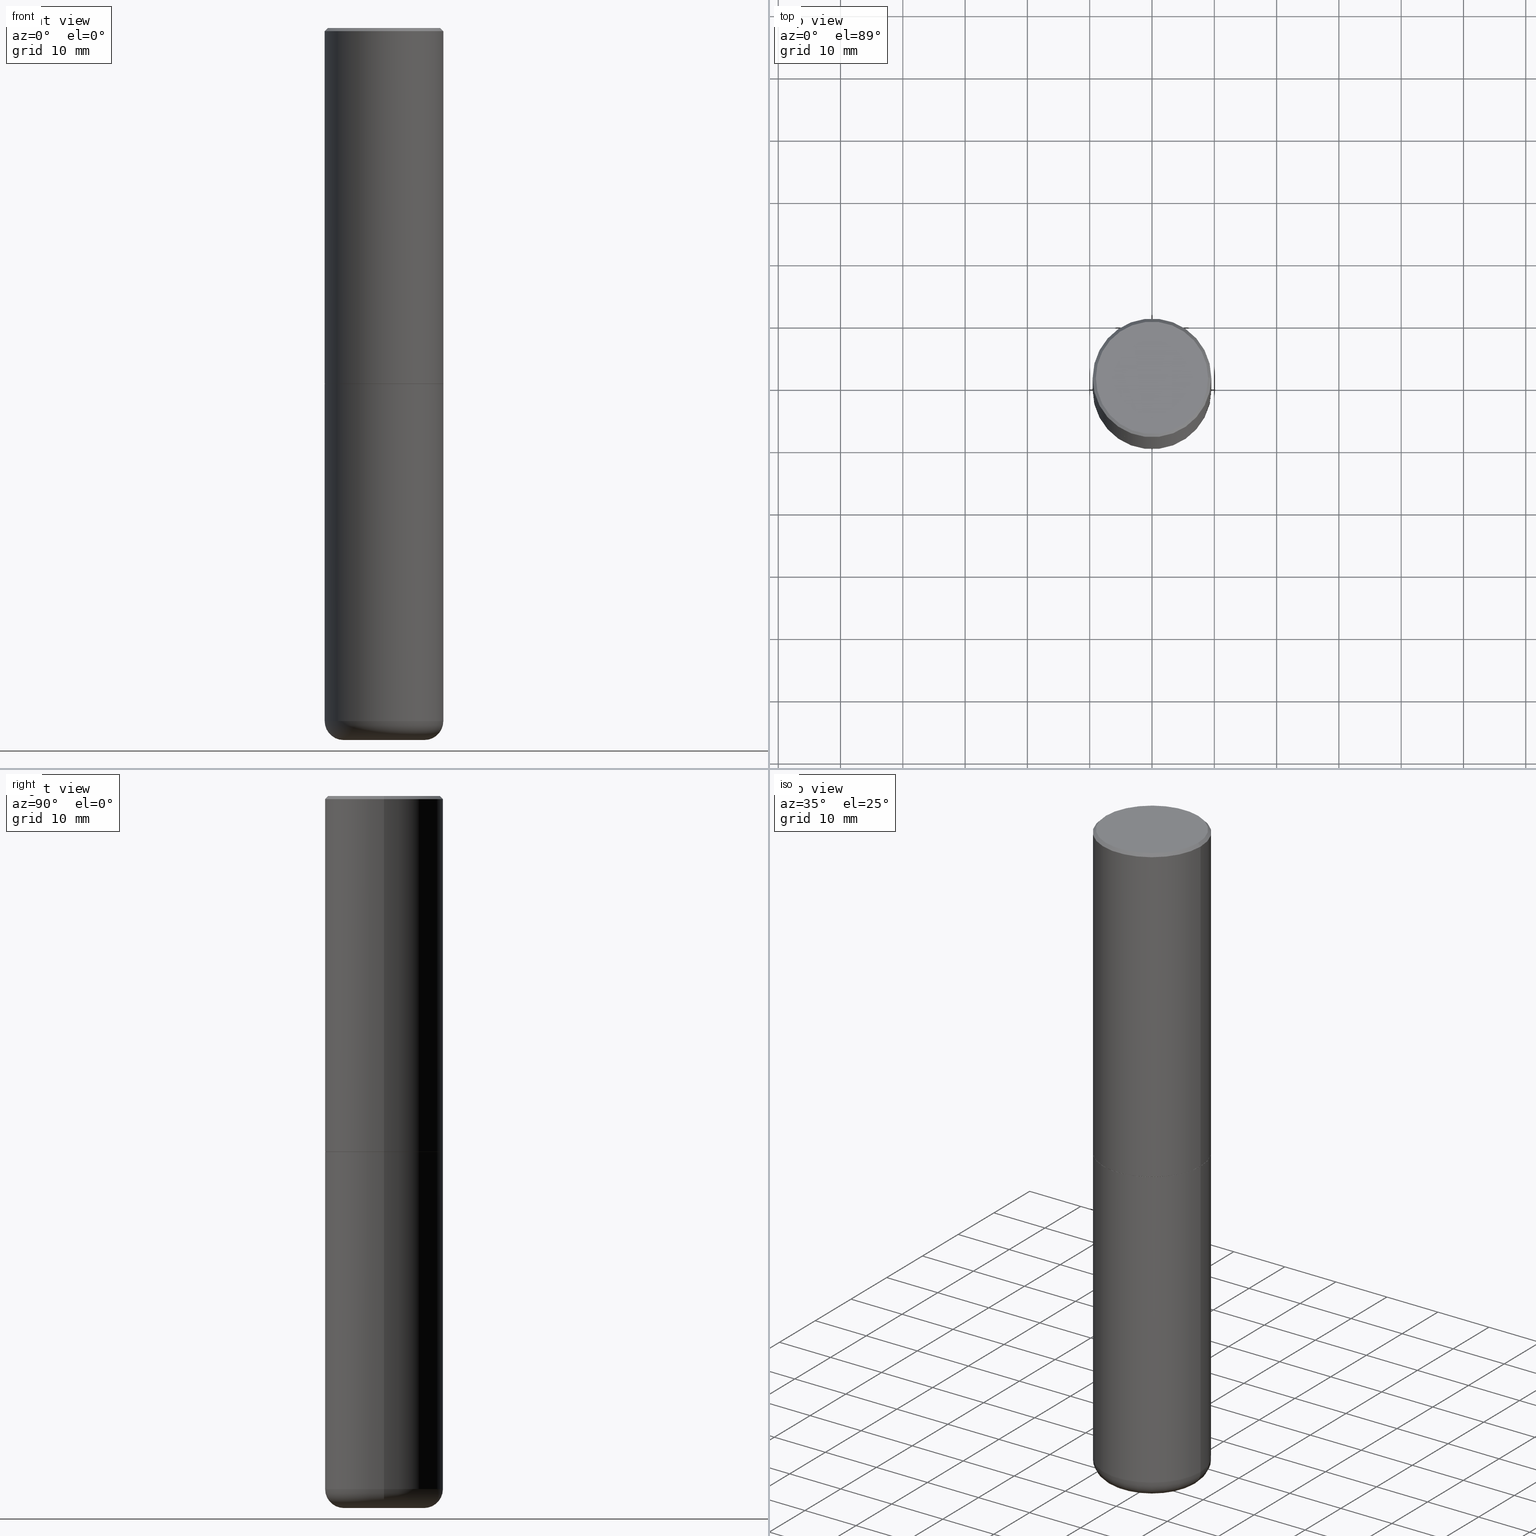
[diagram: canonical four-view strip — front | top / right | iso, engineering-drawing reading convention]
A machine part, canonical four-view strip (front | top / right | iso — engineering-drawing reading convention). The complete STEP part file that produces these views, byte-faithful:
ISO-10303-21;
HEADER;
FILE_DESCRIPTION (( 'STEP AP203' ),
    '1' );
FILE_NAME ('77275.STEP',
    '2024-03-06T16:48:19',
    ( '' ),
    ( '' ),
    'SwSTEP 2.0',
    'SolidWorks 2023',
    '' );
FILE_SCHEMA (( 'CONFIG_CONTROL_DESIGN' ));
ENDSEC;

DATA;
#1 = CIRCLE ( 'NONE', #307, 0.3750000000000001110 ) ;
#2 = CC_DESIGN_DATE_AND_TIME_ASSIGNMENT ( #328, #199, ( #334 ) ) ;
#3 = PRODUCT_DEFINITION_FORMATION_WITH_SPECIFIED_SOURCE ( 'ANY', '', #338, .NOT_KNOWN. ) ;
#4 = ORIENTED_EDGE ( 'NONE', *, *, #373, .F. ) ;
#5 = DIMENSIONAL_EXPONENTS ( 1.000000000000000000, 0.000000000000000000, 0.000000000000000000, 0.000000000000000000, 0.000000000000000000, 0.000000000000000000, 0.000000000000000000 ) ;
#6 = ADVANCED_FACE ( 'NONE', ( #128 ), #8, .T. ) ;
#7 = DIRECTION ( 'NONE',  ( -2.445468806185136597E-29, 3.491481338843145583E-15, 1.000000000000000000 ) ) ;
#8 = CYLINDRICAL_SURFACE ( 'NONE', #367, 0.3750000000000002220 ) ;
#9 = ORIENTED_EDGE ( 'NONE', *, *, #165, .T. ) ;
#10 = DIRECTION ( 'NONE',  ( -2.445468806185136597E-29, 3.491481338843145583E-15, 1.000000000000000000 ) ) ;
#11 = DIRECTION ( 'NONE',  ( -2.438088387897960049E-29, 3.491481338843145188E-15, 1.000000000000000000 ) ) ;
#12 = DIRECTION ( 'NONE',  ( 1.000000000000000000, -6.982962677686265922E-15, 4.876231632511988183E-29 ) ) ;
#13 = CIRCLE ( 'NONE', #376, 0.1200000000000002176 ) ;
#14 = EDGE_CURVE ( 'NONE', #322, #175, #149, .T. ) ;
#15 = CARTESIAN_POINT ( 'NONE',  ( 0.000000000000000000, 0.000000000000000000, 0.000000000000000000 ) ) ;
#16 = VECTOR ( 'NONE', #268, 39.37007874015748143 ) ;
#17 = DIRECTION ( 'NONE',  ( -1.000000000000000000, 6.982962677686265922E-15, -4.876176775795935793E-29 ) ) ;
#18 = AXIS2_PLACEMENT_3D ( 'NONE', #206, #54, #89 ) ;
#19 = APPROVAL_DATE_TIME ( #234, #140 ) ;
#20 = PLANE ( 'NONE',  #306 ) ;
#21 = LINE ( 'NONE', #374, #360 ) ;
#22 = VECTOR ( 'NONE', #162, 39.37007874015748143 ) ;
#23 = AXIS2_PLACEMENT_3D ( 'NONE', #355, #10, #38 ) ;
#24 = CARTESIAN_POINT ( 'NONE',  ( 0.3750000000000000555, -1.047444401652942689E-14, -2.250000000000000000 ) ) ;
#25 = DIRECTION ( 'NONE',  ( 1.000000000000000000, -6.982962677686261189E-15, 0.000000000000000000 ) ) ;
#26 = ADVANCED_FACE ( 'NONE', ( #380 ), #96, .T. ) ;
#27 = CARTESIAN_POINT ( 'NONE',  ( 0.2550000000000000044, -1.707334374694297701E-14, -4.379999999999999893 ) ) ;
#28 = DIRECTION ( 'NONE',  ( 1.000000000000000000, -6.982962677686266711E-15, 4.876176775795935793E-29 ) ) ;
#29 = VECTOR ( 'NONE', #225, 39.37007874015748143 ) ;
#30 = DIRECTION ( 'NONE',  ( -2.445468806185136597E-29, 3.491481338843145583E-15, 1.000000000000000000 ) ) ;
#31 = CARTESIAN_POINT ( 'NONE',  ( -0.3750000000000001110, 2.548781377355487113E-15, -0.02000000000000008715 ) ) ;
#32 = DIRECTION ( 'NONE',  ( -2.445468806185136597E-29, 3.491481338843145583E-15, 1.000000000000000000 ) ) ;
#33 = DIRECTION ( 'NONE',  ( 1.000000000000000000, -6.982962677686265922E-15, 4.876176775795935793E-29 ) ) ;
#34 = CARTESIAN_POINT ( 'NONE',  ( 5.499859345110371740E-29, -7.852341531058233864E-15, -2.249000000000000110 ) ) ;
#35 = ORIENTED_EDGE ( 'NONE', *, *, #70, .F. ) ;
#36 = AXIS2_PLACEMENT_3D ( 'NONE', #127, #327, #392 ) ;
#37 = LOCAL_TIME ( 11, 48, 19.00000000000000000, #240 ) ;
#38 = DIRECTION ( 'NONE',  ( 1.000000000000000000, -6.982962677686264344E-15, 0.000000000000000000 ) ) ;
#39 = CC_DESIGN_APPROVAL ( #274, ( #341 ) ) ;
#40 = ORIENTED_EDGE ( 'NONE', *, *, #277, .F. ) ;
#41 = ORIENTED_EDGE ( 'NONE', *, *, #309, .T. ) ;
#42 = DIRECTION ( 'NONE',  ( 1.000000000000000000, -6.982962677686269077E-15, 4.883557194083113462E-29 ) ) ;
#43 = CARTESIAN_POINT ( 'NONE',  ( 0.000000000000000000, 0.000000000000000000, 0.000000000000000000 ) ) ;
#44 = EDGE_CURVE ( 'NONE', #132, #322, #318, .T. ) ;
#45 =( NAMED_UNIT ( * ) SI_UNIT ( $, .STERADIAN. ) SOLID_ANGLE_UNIT ( ) );
#46 = CC_DESIGN_PERSON_AND_ORGANIZATION_ASSIGNMENT ( #84, #143, ( #3 ) ) ;
#47 = DATE_TIME_ROLE ( 'classification_date' ) ;
#48 = AXIS2_PLACEMENT_3D ( 'NONE', #193, #163, #12 ) ;
#49 = ADVANCED_FACE ( 'NONE', ( #386 ), #394, .T. ) ;
#50 = CALENDAR_DATE ( 2024, 6, 3 ) ;
#51 = CC_DESIGN_PERSON_AND_ORGANIZATION_ASSIGNMENT ( #365, #403, ( #3 ) ) ;
#52 = CARTESIAN_POINT ( 'NONE',  ( 5.502304813916558464E-29, -7.855833012397078448E-15, -2.250000000000000444 ) ) ;
#53 = COORDINATED_UNIVERSAL_TIME_OFFSET ( 5, 0, .BEHIND. ) ;
#54 = DIRECTION ( 'NONE',  ( -2.445468806185136597E-29, 3.491481338843145583E-15, 1.000000000000000000 ) ) ;
#55 = CIRCLE ( 'NONE', #66, 0.3549999999999999822 ) ;
#56 = ORIENTED_EDGE ( 'NONE', *, *, #70, .T. ) ;
#57 = DIRECTION ( 'NONE',  ( -2.445468806185136597E-29, 3.491481338843145583E-15, 1.000000000000000000 ) ) ;
#58 = FACE_OUTER_BOUND ( 'NONE', #295, .T. ) ;
#59 = AXIS2_PLACEMENT_3D ( 'NONE', #358, #32, #294 ) ;
#60 = CARTESIAN_POINT ( 'NONE',  ( 4.271765187526177171E-29, -2.535348247302097113E-14, -4.500000000000000888 ) ) ;
#61 = ADVANCED_FACE ( 'NONE', ( #136 ), #174, .F. ) ;
#62 = CARTESIAN_POINT ( 'NONE',  ( -0.2550000000000000044, -1.326396752681925022E-14, -4.500000000000000888 ) ) ;
#63 = VERTEX_POINT ( 'NONE', #88 ) ;
#64 = DIRECTION ( 'NONE',  ( 1.000000000000000000, -6.982962677686265133E-15, 0.000000000000000000 ) ) ;
#65 = ORIENTED_EDGE ( 'NONE', *, *, #266, .T. ) ;
#66 = AXIS2_PLACEMENT_3D ( 'NONE', #90, #407, #116 ) ;
#67 = DIRECTION ( 'NONE',  ( -1.000000000000000000, 6.982962677686265922E-15, 0.000000000000000000 ) ) ;
#68 = ORIENTED_EDGE ( 'NONE', *, *, #297, .T. ) ;
#69 = LINE ( 'NONE', #258, #270 ) ;
#70 = EDGE_CURVE ( 'NONE', #182, #222, #79, .T. ) ;
#71 = ORIENTED_EDGE ( 'NONE', *, *, #44, .F. ) ;
#72 = FACE_OUTER_BOUND ( 'NONE', #287, .T. ) ;
#73 = ORIENTED_EDGE ( 'NONE', *, *, #305, .F. ) ;
#74 = TOROIDAL_SURFACE ( 'NONE', #100, 0.2550000000000000044, 0.1200000000000001898 ) ;
#75 = DIRECTION ( 'NONE',  ( 1.000000000000000000, -6.982962677686267499E-15, 0.000000000000000000 ) ) ;
#76 = DIRECTION ( 'NONE',  ( 1.000000000000000000, -6.982962677686265922E-15, 4.876176775795935793E-29 ) ) ;
#77 = DIRECTION ( 'NONE',  ( 1.000000000000000000, -6.982962677686265133E-15, 0.000000000000000000 ) ) ;
#78 = EDGE_CURVE ( 'NONE', #353, #175, #366, .T. ) ;
#79 = CIRCLE ( 'NONE', #310, 0.3739999999999999991 ) ;
#80 = PERSON_AND_ORGANIZATION ( #157, #81 ) ;
#81 = ORGANIZATION ( 'UNSPECIFIED', 'UNSPECIFIED', '' ) ;
#82 = CALENDAR_DATE ( 2024, 6, 3 ) ;
#83 = PERSON_AND_ORGANIZATION_ROLE ( 'design_owner' ) ;
#84 = PERSON_AND_ORGANIZATION ( #157, #81 ) ;
#85 = DIRECTION ( 'NONE',  ( 1.000000000000000000, -6.982962677686264344E-15, 0.000000000000000000 ) ) ;
#86 = AXIS2_PLACEMENT_3D ( 'NONE', #286, #131, #77 ) ;
#87 = EDGE_CURVE ( 'NONE', #63, #251, #120, .T. ) ;
#88 = CARTESIAN_POINT ( 'NONE',  ( -0.3750000000000000555, -8.909725379164652081E-15, -2.250000000000000000 ) ) ;
#89 = DIRECTION ( 'NONE',  ( 1.000000000000000000, -6.982962677686266711E-15, 4.876176775795935793E-29 ) ) ;
#90 = CARTESIAN_POINT ( 'NONE',  ( -1.565777121502829671E-45, 2.235514755570671047E-31, 6.402768735150616610E-17 ) ) ;
#91 = AXIS2_PLACEMENT_3D ( 'NONE', #159, #255, #282 ) ;
#92 = LOCAL_TIME ( 11, 48, 19.00000000000000000, #53 ) ;
#93 = FACE_OUTER_BOUND ( 'NONE', #220, .T. ) ;
#94 = ORIENTED_EDGE ( 'NONE', *, *, #379, .T. ) ;
#95 = DIRECTION ( 'NONE',  ( 2.438088387897960049E-29, -3.491481338843145188E-15, -1.000000000000000000 ) ) ;
#96 = CYLINDRICAL_SURFACE ( 'NONE', #280, 0.3750000000000000555 ) ;
#97 = ORIENTED_EDGE ( 'NONE', *, *, #224, .F. ) ;
#98 = DIRECTION ( 'NONE',  ( 0.7071067811865232589, -2.468850131082003836E-15, 0.7071067811865715536 ) ) ;
#99 = VERTEX_POINT ( 'NONE', #237 ) ;
#100 = AXIS2_PLACEMENT_3D ( 'NONE', #324, #103, #42 ) ;
#101 = EDGE_LOOP ( 'NONE', ( #326, #94, #166, #133 ) ) ;
#102 = ORIENTED_EDGE ( 'NONE', *, *, #14, .T. ) ;
#103 = DIRECTION ( 'NONE',  ( -2.445468806185136597E-29, 3.491481338843145583E-15, 1.000000000000000000 ) ) ;
#104 = DIRECTION ( 'NONE',  ( 1.000000000000000000, -6.982962677686265922E-15, 4.876176775795935793E-29 ) ) ;
#105 = CIRCLE ( 'NONE', #233, 0.3750000000000002776 ) ;
#106 = PERSON_AND_ORGANIZATION_ROLE ( 'creator' ) ;
#107 = DATE_AND_TIME ( #203, #361 ) ;
#108 = ADVANCED_FACE ( 'NONE', ( #304 ), #20, .F. ) ;
#109 = CIRCLE ( 'NONE', #368, 0.3750000000000000555 ) ;
#110 = CC_DESIGN_SECURITY_CLASSIFICATION ( #341, ( #3 ) ) ;
#111 = DIRECTION ( 'NONE',  ( -1.000000000000000000, 7.105427357600994759E-15, 0.000000000000000000 ) ) ;
#112 = CALENDAR_DATE ( 2024, 6, 3 ) ;
#113 = PERSON_AND_ORGANIZATION ( #157, #81 ) ;
#114 = ORIENTED_EDGE ( 'NONE', *, *, #359, .T. ) ;
#115 = VECTOR ( 'NONE', #119, 39.37007874015748143 ) ;
#116 = DIRECTION ( 'NONE',  ( 1.000000000000000000, -6.982962677686265922E-15, 4.876231632511988183E-29 ) ) ;
#117 = CARTESIAN_POINT ( 'NONE',  ( -0.3750000000000001110, -1.262815300503259983E-14, -4.379999999999999893 ) ) ;
#118 = EDGE_CURVE ( 'NONE', #215, #285, #410, .T. ) ;
#119 = DIRECTION ( 'NONE',  ( -2.445468806185136877E-29, 3.491481338843145188E-15, 1.000000000000000000 ) ) ;
#120 = CIRCLE ( 'NONE', #244, 0.3750000000000000555 ) ;
#121 = TOROIDAL_SURFACE ( 'NONE', #301, 0.2550000000000000044, 0.1200000000000001898 ) ;
#122 = CARTESIAN_POINT ( 'NONE',  ( 1.071115337109089838E-28, -1.529268826413297711E-14, -4.379999999999999893 ) ) ;
#123 = ORIENTED_EDGE ( 'NONE', *, *, #305, .T. ) ;
#124 = CARTESIAN_POINT ( 'NONE',  ( -0.3739999999999999991, -5.198403180654303760E-15, -2.250000000000000444 ) ) ;
#125 = ORIENTED_EDGE ( 'NONE', *, *, #229, .F. ) ;
#126 = ORIENTED_EDGE ( 'NONE', *, *, #118, .F. ) ;
#127 = CARTESIAN_POINT ( 'NONE',  ( 4.890937612370294178E-31, -6.982962677686321191E-17, -0.02000000000000008715 ) ) ;
#128 = FACE_OUTER_BOUND ( 'NONE', #217, .T. ) ;
#129 = AXIS2_PLACEMENT_3D ( 'NONE', #269, #401, #111 ) ;
#130 = ORIENTED_EDGE ( 'NONE', *, *, #198, .T. ) ;
#131 = DIRECTION ( 'NONE',  ( -2.445468806185136597E-29, 3.491481338843145583E-15, 1.000000000000000000 ) ) ;
#132 = VERTEX_POINT ( 'NONE', #362 ) ;
#133 = ORIENTED_EDGE ( 'NONE', *, *, #337, .F. ) ;
#134 = PRODUCT_RELATED_PRODUCT_CATEGORY ( 'detail', '', ( #338 ) ) ;
#135 = PLANE ( 'NONE',  #316 ) ;
#136 = FACE_OUTER_BOUND ( 'NONE', #291, .T. ) ;
#137 = DESIGN_CONTEXT ( 'detailed design', #260, 'design' ) ;
#138 = CONICAL_SURFACE ( 'NONE', #311, 0.3739999999999999991, 0.7853981633974141952 ) ;
#139 = CARTESIAN_POINT ( 'NONE',  ( 5.502304813916557343E-29, -7.855833012397078448E-15, -2.250000000000000000 ) ) ;
#140 = APPROVAL ( #180, 'UNSPECIFIED' ) ;
#141 = CALENDAR_DATE ( 2024, 6, 3 ) ;
#142 = CARTESIAN_POINT ( 'NONE',  ( 0.3750000000000001110, -2.642516375941188423E-15, -0.02000000000000008715 ) ) ;
#143 = PERSON_AND_ORGANIZATION_ROLE ( 'design_supplier' ) ;
#144 = FACE_OUTER_BOUND ( 'NONE', #382, .T. ) ;
#145 = PERSON_AND_ORGANIZATION ( #157, #81 ) ;
#146 = CARTESIAN_POINT ( 'NONE',  ( 5.502304813916557343E-29, -7.855833012397078448E-15, -2.250000000000000000 ) ) ;
#147 = PERSON_AND_ORGANIZATION ( #157, #81 ) ;
#148 = ADVANCED_FACE ( 'NONE', ( #144 ), #364, .T. ) ;
#149 = CIRCLE ( 'NONE', #91, 0.3750000000000001110 ) ;
#150 = DIRECTION ( 'NONE',  ( 1.000000000000000000, -6.982962677686260400E-15, 0.000000000000000000 ) ) ;
#151 = AXIS2_PLACEMENT_3D ( 'NONE', #15, #335, #400 ) ;
#152 = DIRECTION ( 'NONE',  ( -2.445468806185136597E-29, 3.491481338843145583E-15, 1.000000000000000000 ) ) ;
#153 = ADVANCED_FACE ( 'NONE', ( #411 ), #347, .T. ) ;
#154 = PRODUCT_DEFINITION_SHAPE ( 'NONE', 'NONE',  #334 ) ;
#155 = DIRECTION ( 'NONE',  ( -6.982962677686266711E-15, -1.000000000000000000, 3.491481338843145583E-15 ) ) ;
#156 = CARTESIAN_POINT ( 'NONE',  ( 0.3750000000000002776, -1.047095253519058704E-14, -2.249000000000000110 ) ) ;
#157 = PERSON ( 'UNSPECIFIED', 'UNSPECIFIED', 'UNSPECIFIED', ('UNSPECIFIED'), ('UNSPECIFIED'), ('UNSPECIFIED') ) ;
#158 = AXIS2_PLACEMENT_3D ( 'NONE', #34, #253, #75 ) ;
#159 = CARTESIAN_POINT ( 'NONE',  ( 4.890937612370294178E-31, -6.982962677686321191E-17, -0.02000000000000008715 ) ) ;
#160 = ORIENTED_EDGE ( 'NONE', *, *, #277, .T. ) ;
#161 = CARTESIAN_POINT ( 'NONE',  ( 0.3750000000000001110, -2.642516375941188423E-15, -0.02000000000000008715 ) ) ;
#162 = DIRECTION ( 'NONE',  ( -0.7071067811865471286, 2.468850131082252722E-15, -0.7071067811865479058 ) ) ;
#163 = DIRECTION ( 'NONE',  ( -2.445468806185136597E-29, 3.491481338843145583E-15, 1.000000000000000000 ) ) ;
#164 = ORIENTED_EDGE ( 'NONE', *, *, #14, .F. ) ;
#165 = EDGE_CURVE ( 'NONE', #99, #322, #242, .T. ) ;
#166 = ORIENTED_EDGE ( 'NONE', *, *, #390, .F. ) ;
#167 = FACE_OUTER_BOUND ( 'NONE', #323, .T. ) ;
#168 = ORIENTED_EDGE ( 'NONE', *, *, #118, .T. ) ;
#169 = CONICAL_SURFACE ( 'NONE', #36, 0.3750000000000001110, 0.7853981633974477239 ) ;
#170 = CC_DESIGN_PERSON_AND_ORGANIZATION_ASSIGNMENT ( #113, #399, ( #341 ) ) ;
#171 = ORIENTED_EDGE ( 'NONE', *, *, #379, .F. ) ;
#172 = ADVANCED_FACE ( 'NONE', ( #58 ), #212, .T. ) ;
#173 = FACE_OUTER_BOUND ( 'NONE', #227, .T. ) ;
#174 = PLANE ( 'NONE',  #195 ) ;
#175 = VERTEX_POINT ( 'NONE', #161 ) ;
#176 = LINE ( 'NONE', #300, #29 ) ;
#177 = COORDINATED_UNIVERSAL_TIME_OFFSET ( 5, 0, .BEHIND. ) ;
#178 = DATE_AND_TIME ( #112, #398 ) ;
#179 = CIRCLE ( 'NONE', #23, 0.3750000000000000555 ) ;
#180 = APPROVAL_STATUS ( 'not_yet_approved' ) ;
#181 = APPROVAL ( #273, 'UNSPECIFIED' ) ;
#182 = VERTEX_POINT ( 'NONE', #313 ) ;
#183 = ADVANCED_BREP_SHAPE_REPRESENTATION ( '77275', ( #391, #387, #151 ), #219 ) ;
#184 = DIRECTION ( 'NONE',  ( 1.000000000000000000, -6.982962677686265922E-15, 0.000000000000000000 ) ) ;
#185 = EDGE_CURVE ( 'NONE', #175, #322, #1, .T. ) ;
#186 = DIRECTION ( 'NONE',  ( -2.445468806185136597E-29, 3.491481338843145583E-15, 1.000000000000000000 ) ) ;
#187 = DIRECTION ( 'NONE',  ( 1.000000000000000000, -6.982962677686260400E-15, 0.000000000000000000 ) ) ;
#188 = EDGE_LOOP ( 'NONE', ( #40, #56, #248, #223 ) ) ;
#189 = CARTESIAN_POINT ( 'NONE',  ( -0.3750000000000002220, 2.664535259100377275E-15, -1.844600658845590719E-29 ) ) ;
#190 = DIRECTION ( 'NONE',  ( -2.445468806185136597E-29, 3.491481338843145583E-15, 1.000000000000000000 ) ) ;
#191 = DIRECTION ( 'NONE',  ( -2.445468806185136597E-29, 3.491481338843145583E-15, 1.000000000000000000 ) ) ;
#192 = ORIENTED_EDGE ( 'NONE', *, *, #87, .F. ) ;
#193 = CARTESIAN_POINT ( 'NONE',  ( -1.565777121502829671E-45, 2.235514755570671047E-31, 6.402768735150616610E-17 ) ) ;
#194 = EDGE_LOOP ( 'NONE', ( #114, #123 ) ) ;
#195 = AXIS2_PLACEMENT_3D ( 'NONE', #299, #11, #76 ) ;
#196 = ORIENTED_EDGE ( 'NONE', *, *, #185, .F. ) ;
#197 = CIRCLE ( 'NONE', #275, 0.3750000000000000555 ) ;
#198 = EDGE_CURVE ( 'NONE', #418, #215, #356, .T. ) ;
#199 = DATE_TIME_ROLE ( 'creation_date' ) ;
#200 = VECTOR ( 'NONE', #342, 39.37007874015748143 ) ;
#201 = PERSON_AND_ORGANIZATION ( #157, #81 ) ;
#202 = EDGE_CURVE ( 'NONE', #418, #315, #13, .T. ) ;
#203 = CALENDAR_DATE ( 2024, 6, 3 ) ;
#204 = VERTEX_POINT ( 'NONE', #156 ) ;
#205 = APPROVAL_ROLE ( '' ) ;
#206 = CARTESIAN_POINT ( 'NONE',  ( 0.000000000000000000, 0.000000000000000000, 0.000000000000000000 ) ) ;
#207 = CIRCLE ( 'NONE', #245, 0.2550000000000000044 ) ;
#208 = SECURITY_CLASSIFICATION_LEVEL ( 'unclassified' ) ;
#209 = CARTESIAN_POINT ( 'NONE',  ( 2.478951750578624209E-15, 0.3549999999999999822, -1.207462031613563440E-15 ) ) ;
#210 = DIRECTION ( 'NONE',  ( -1.000000000000000000, 6.982962677686265922E-15, -4.876176775795935793E-29 ) ) ;
#211 = APPROVAL_PERSON_ORGANIZATION ( #267, #140, #205 ) ;
#212 = PLANE ( 'NONE',  #397 ) ;
#213 = EDGE_LOOP ( 'NONE', ( #126, #68, #395, #125 ) ) ;
#214 = UNCERTAINTY_MEASURE_WITH_UNIT (LENGTH_MEASURE( 1.000000000000000082E-05 ), #396, 'distance_accuracy_value', 'NONE');
#215 = VERTEX_POINT ( 'NONE', #62 ) ;
#216 = DIRECTION ( 'NONE',  ( -2.445468806185136597E-29, 3.491481338843145583E-15, 1.000000000000000000 ) ) ;
#217 = EDGE_LOOP ( 'NONE', ( #65, #9, #196, #389 ) ) ;
#218 = CARTESIAN_POINT ( 'NONE',  ( 1.100460962783311693E-28, -1.571166602479415690E-14, -4.500000000000000888 ) ) ;
#219 =( GEOMETRIC_REPRESENTATION_CONTEXT ( 3 ) GLOBAL_UNCERTAINTY_ASSIGNED_CONTEXT ( ( #214 ) ) GLOBAL_UNIT_ASSIGNED_CONTEXT ( ( #396, #265, #45 ) ) REPRESENTATION_CONTEXT ( 'NONE', 'WORKASPACE' ) );
#220 = EDGE_LOOP ( 'NONE', ( #130, #168, #261, #346 ) ) ;
#221 = DIRECTION ( 'NONE',  ( 1.000000000000000000, -6.982962677686269077E-15, 4.883557194083113462E-29 ) ) ;
#222 = VERTEX_POINT ( 'NONE', #371 ) ;
#223 = ORIENTED_EDGE ( 'NONE', *, *, #393, .F. ) ;
#224 = EDGE_CURVE ( 'NONE', #222, #204, #21, .T. ) ;
#225 = DIRECTION ( 'NONE',  ( -2.445468806185136877E-29, 3.491481338843145188E-15, 1.000000000000000000 ) ) ;
#226 = ORIENTED_EDGE ( 'NONE', *, *, #87, .T. ) ;
#227 = EDGE_LOOP ( 'NONE', ( #73, #284, #249, #71 ) ) ;
#228 = DIRECTION ( 'NONE',  ( -2.445468806185136877E-29, 3.491481338843145188E-15, 1.000000000000000000 ) ) ;
#229 = EDGE_CURVE ( 'NONE', #285, #315, #197, .T. ) ;
#230 = CIRCLE ( 'NONE', #86, 0.3739999999999999991 ) ;
#231 = EDGE_CURVE ( 'NONE', #315, #285, #109, .T. ) ;
#232 = MECHANICAL_CONTEXT ( 'NONE', #236, 'mechanical' ) ;
#233 = AXIS2_PLACEMENT_3D ( 'NONE', #317, #30, #413 ) ;
#234 = DATE_AND_TIME ( #141, #37 ) ;
#235 = ADVANCED_FACE ( 'NONE', ( #283 ), #138, .T. ) ;
#236 = APPLICATION_CONTEXT ( 'configuration controlled 3d designs of mechanical parts and assemblies' ) ;
#237 = CARTESIAN_POINT ( 'NONE',  ( -0.3750000000000002776, -1.296550319817170517E-15, -2.249000000000000110 ) ) ;
#238 = SHAPE_DEFINITION_REPRESENTATION ( #154, #183 ) ;
#239 = VECTOR ( 'NONE', #250, 39.37007874015748854 ) ;
#240 = COORDINATED_UNIVERSAL_TIME_OFFSET ( 5, 0, .BEHIND. ) ;
#241 = DIRECTION ( 'NONE',  ( -2.445468806185136597E-29, 3.491481338843145583E-15, 1.000000000000000000 ) ) ;
#242 = LINE ( 'NONE', #189, #200 ) ;
#243 = CARTESIAN_POINT ( 'NONE',  ( 1.100460962783311693E-28, -1.571166602479415690E-14, -4.500000000000000888 ) ) ;
#244 = AXIS2_PLACEMENT_3D ( 'NONE', #146, #241, #85 ) ;
#245 = AXIS2_PLACEMENT_3D ( 'NONE', #218, #191, #150 ) ;
#246 = CARTESIAN_POINT ( 'NONE',  ( 0.3750000000000001110, -1.791129926826532712E-14, -4.379999999999999893 ) ) ;
#247 = DIRECTION ( 'NONE',  ( 1.000000000000000000, -6.982962677686261189E-15, 0.000000000000000000 ) ) ;
#248 = ORIENTED_EDGE ( 'NONE', *, *, #224, .T. ) ;
#249 = ORIENTED_EDGE ( 'NONE', *, *, #185, .T. ) ;
#250 = DIRECTION ( 'NONE',  ( -0.7071067811865232589, 7.493145998870265808E-15, 0.7071067811865715536 ) ) ;
#251 = VERTEX_POINT ( 'NONE', #24 ) ;
#252 = ORIENTED_EDGE ( 'NONE', *, *, #44, .T. ) ;
#253 = DIRECTION ( 'NONE',  ( -2.445468806185136597E-29, 3.491481338843145583E-15, 1.000000000000000000 ) ) ;
#254 = CLOSED_SHELL ( 'NONE', ( #372, #6, #383, #153, #148, #235, #61, #108 ) ) ;
#255 = DIRECTION ( 'NONE',  ( -2.445468806185136597E-29, 3.491481338843145583E-15, 1.000000000000000000 ) ) ;
#256 = CARTESIAN_POINT ( 'NONE',  ( 0.2550000000000000044, -1.749232150760415365E-14, -4.500000000000000888 ) ) ;
#257 = ORIENTED_EDGE ( 'NONE', *, *, #390, .T. ) ;
#258 = CARTESIAN_POINT ( 'NONE',  ( -0.3750000000000000555, 2.664535259100376091E-15, -1.844600658845589598E-29 ) ) ;
#259 = ORIENTED_EDGE ( 'NONE', *, *, #165, .F. ) ;
#260 = APPLICATION_CONTEXT ( 'configuration controlled 3d designs of mechanical parts and assemblies' ) ;
#261 = ORIENTED_EDGE ( 'NONE', *, *, #231, .F. ) ;
#262 = LENGTH_MEASURE_WITH_UNIT ( LENGTH_MEASURE( 0.02539999999999999897 ), #352 );
#263 = CIRCLE ( 'NONE', #48, 0.3549999999999999822 ) ;
#264 = CC_DESIGN_APPROVAL ( #181, ( #3 ) ) ;
#265 =( NAMED_UNIT ( * ) PLANE_ANGLE_UNIT ( ) SI_UNIT ( $, .RADIAN. ) );
#266 = EDGE_CURVE ( 'NONE', #204, #99, #105, .T. ) ;
#267 = PERSON_AND_ORGANIZATION ( #157, #81 ) ;
#268 = DIRECTION ( 'NONE',  ( 0.7071067811865471286, -7.319954787623254468E-15, -0.7071067811865479058 ) ) ;
#269 = CARTESIAN_POINT ( 'NONE',  ( -0.2550000000000000044, -1.348080428794472239E-14, -4.379999999999999893 ) ) ;
#270 = VECTOR ( 'NONE', #228, 39.37007874015748143 ) ;
#271 = CC_DESIGN_APPROVAL ( #140, ( #334 ) ) ;
#272 = COORDINATED_UNIVERSAL_TIME_OFFSET ( 5, 0, .BEHIND. ) ;
#273 = APPROVAL_STATUS ( 'not_yet_approved' ) ;
#274 = APPROVAL ( #303, 'UNSPECIFIED' ) ;
#275 = AXIS2_PLACEMENT_3D ( 'NONE', #122, #186, #247 ) ;
#276 = DIRECTION ( 'NONE',  ( -2.445468806185136597E-29, 3.491481338843145583E-15, 1.000000000000000000 ) ) ;
#277 = EDGE_CURVE ( 'NONE', #182, #99, #278, .T. ) ;
#278 = LINE ( 'NONE', #124, #239 ) ;
#279 = LINE ( 'NONE', #409, #115 ) ;
#280 = AXIS2_PLACEMENT_3D ( 'NONE', #320, #190, #33 ) ;
#281 = CIRCLE ( 'NONE', #158, 0.3750000000000002776 ) ;
#282 = DIRECTION ( 'NONE',  ( 1.000000000000000000, -6.982962677686265922E-15, 0.000000000000000000 ) ) ;
#283 = FACE_OUTER_BOUND ( 'NONE', #188, .T. ) ;
#284 = ORIENTED_EDGE ( 'NONE', *, *, #78, .T. ) ;
#285 = VERTEX_POINT ( 'NONE', #117 ) ;
#286 = CARTESIAN_POINT ( 'NONE',  ( 5.502304813916558464E-29, -7.855833012397078448E-15, -2.250000000000000444 ) ) ;
#287 = EDGE_LOOP ( 'NONE', ( #257, #226 ) ) ;
#288 = ORIENTED_EDGE ( 'NONE', *, *, #337, .T. ) ;
#289 = DIRECTION ( 'NONE',  ( -1.000000000000000000, 6.982962677686265922E-15, -4.876176775795935793E-29 ) ) ;
#290 = AXIS2_PLACEMENT_3D ( 'NONE', #243, #378, #187 ) ;
#291 = EDGE_LOOP ( 'NONE', ( #4, #35 ) ) ;
#292 = APPROVAL_PERSON_ORGANIZATION ( #145, #181, #404 ) ;
#293 = ORIENTED_EDGE ( 'NONE', *, *, #266, .F. ) ;
#294 = DIRECTION ( 'NONE',  ( 1.000000000000000000, -6.982962677686265133E-15, 0.000000000000000000 ) ) ;
#295 = EDGE_LOOP ( 'NONE', ( #412, #414 ) ) ;
#296 = EDGE_LOOP ( 'NONE', ( #381, #415, #252, #102 ) ) ;
#297 = EDGE_CURVE ( 'NONE', #215, #418, #207, .T. ) ;
#298 = CARTESIAN_POINT ( 'NONE',  ( 0.3549999999999999822, -2.538996582575041048E-15, 6.402768735152371826E-17 ) ) ;
#299 = CARTESIAN_POINT ( 'NONE',  ( 5.502304813916558464E-29, -7.855833012397078448E-15, -2.250000000000000444 ) ) ;
#300 = CARTESIAN_POINT ( 'NONE',  ( 0.3750000000000000555, -2.618611004132350016E-15, 1.828566290923476203E-29 ) ) ;
#301 = AXIS2_PLACEMENT_3D ( 'NONE', #321, #7, #221 ) ;
#302 = LOCAL_TIME ( 11, 48, 19.00000000000000000, #177 ) ;
#303 = APPROVAL_STATUS ( 'not_yet_approved' ) ;
#304 = FACE_OUTER_BOUND ( 'NONE', #194, .T. ) ;
#305 = EDGE_CURVE ( 'NONE', #353, #132, #55, .T. ) ;
#306 = AXIS2_PLACEMENT_3D ( 'NONE', #209, #370, #17 ) ;
#307 = AXIS2_PLACEMENT_3D ( 'NONE', #408, #152, #184 ) ;
#308 = APPROVAL_DATE_TIME ( #107, #181 ) ;
#309 = EDGE_CURVE ( 'NONE', #204, #175, #279, .T. ) ;
#310 = AXIS2_PLACEMENT_3D ( 'NONE', #52, #57, #333 ) ;
#311 = AXIS2_PLACEMENT_3D ( 'NONE', #345, #312, #64 ) ;
#312 = DIRECTION ( 'NONE',  ( -2.445468806185136597E-29, 3.491481338843145583E-15, 1.000000000000000000 ) ) ;
#313 = CARTESIAN_POINT ( 'NONE',  ( -0.3739999999999999991, -5.193104726306080569E-15, -2.250000000000000444 ) ) ;
#314 = CARTESIAN_POINT ( 'NONE',  ( 1.071115337109089838E-28, -1.529268826413297711E-14, -4.379999999999999893 ) ) ;
#315 = VERTEX_POINT ( 'NONE', #246 ) ;
#316 = AXIS2_PLACEMENT_3D ( 'NONE', #139, #416, #289 ) ;
#317 = CARTESIAN_POINT ( 'NONE',  ( 5.499859345110371740E-29, -7.852341531058233864E-15, -2.249000000000000110 ) ) ;
#318 = LINE ( 'NONE', #31, #22 ) ;
#319 = APPLICATION_PROTOCOL_DEFINITION ( 'international standard', 'config_control_design', 1994, #236 ) ;
#320 = CARTESIAN_POINT ( 'NONE',  ( 0.000000000000000000, 0.000000000000000000, 0.000000000000000000 ) ) ;
#321 = CARTESIAN_POINT ( 'NONE',  ( 1.071115337109089838E-28, -1.529268826413297711E-14, -4.379999999999999893 ) ) ;
#322 = VERTEX_POINT ( 'NONE', #377 ) ;
#323 = EDGE_LOOP ( 'NONE', ( #350, #160, #293, #97 ) ) ;
#324 = CARTESIAN_POINT ( 'NONE',  ( 1.071115337109089838E-28, -1.529268826413297711E-14, -4.379999999999999893 ) ) ;
#325 = CONICAL_SURFACE ( 'NONE', #59, 0.3739999999999999991, 0.7853981633974141952 ) ;
#326 = ORIENTED_EDGE ( 'NONE', *, *, #231, .T. ) ;
#327 = DIRECTION ( 'NONE',  ( 2.445468806185136597E-29, -3.491481338843145583E-15, -1.000000000000000000 ) ) ;
#328 = DATE_AND_TIME ( #82, #92 ) ;
#329 = CLOSED_SHELL ( 'NONE', ( #49, #331, #402, #26, #351, #172 ) ) ;
#330 = APPROVAL_DATE_TIME ( #178, #274 ) ;
#331 = ADVANCED_FACE ( 'NONE', ( #93 ), #74, .T. ) ;
#332 = COORDINATED_UNIVERSAL_TIME_OFFSET ( 5, 0, .BEHIND. ) ;
#333 = DIRECTION ( 'NONE',  ( 1.000000000000000000, -6.982962677686265133E-15, 0.000000000000000000 ) ) ;
#334 = PRODUCT_DEFINITION ( 'UNKNOWN', '', #3, #137 ) ;
#335 = DIRECTION ( 'NONE',  ( 0.000000000000000000, 0.000000000000000000, 1.000000000000000000 ) ) ;
#336 = APPROVAL_ROLE ( '' ) ;
#337 = EDGE_CURVE ( 'NONE', #315, #251, #176, .T. ) ;
#338 = PRODUCT ( '77275', '77275', '', ( #232 ) ) ;
#339 = DIRECTION ( 'NONE',  ( 2.445468806185136597E-29, -3.491481338843145583E-15, -1.000000000000000000 ) ) ;
#340 = CC_DESIGN_PERSON_AND_ORGANIZATION_ASSIGNMENT ( #147, #83, ( #338 ) ) ;
#341 = SECURITY_CLASSIFICATION ( '', '', #208 ) ;
#342 = DIRECTION ( 'NONE',  ( -2.445468806185136877E-29, 3.491481338843145188E-15, 1.000000000000000000 ) ) ;
#343 = DIRECTION ( 'NONE',  ( 1.000000000000000000, -6.982962677686272233E-15, 0.000000000000000000 ) ) ;
#344 = CARTESIAN_POINT ( 'NONE',  ( 0.000000000000000000, 0.000000000000000000, 0.000000000000000000 ) ) ;
#345 = CARTESIAN_POINT ( 'NONE',  ( 5.502304813916558464E-29, -7.855833012397078448E-15, -2.250000000000000444 ) ) ;
#346 = ORIENTED_EDGE ( 'NONE', *, *, #202, .F. ) ;
#347 = CONICAL_SURFACE ( 'NONE', #405, 0.3750000000000001110, 0.7853981633974477239 ) ;
#348 = CARTESIAN_POINT ( 'NONE',  ( 4.890937612370294178E-31, -6.982962677686321191E-17, -0.02000000000000008715 ) ) ;
#349 = EDGE_LOOP ( 'NONE', ( #171, #388, #288, #192 ) ) ;
#350 = ORIENTED_EDGE ( 'NONE', *, *, #373, .T. ) ;
#351 = ADVANCED_FACE ( 'NONE', ( #384 ), #121, .T. ) ;
#352 =( LENGTH_UNIT ( ) NAMED_UNIT ( * ) SI_UNIT ( $, .METRE. ) );
#353 = VERTEX_POINT ( 'NONE', #298 ) ;
#354 = CC_DESIGN_DATE_AND_TIME_ASSIGNMENT ( #369, #47, ( #341 ) ) ;
#355 = CARTESIAN_POINT ( 'NONE',  ( 5.502304813916557343E-29, -7.855833012397078448E-15, -2.250000000000000000 ) ) ;
#356 = CIRCLE ( 'NONE', #290, 0.2550000000000000044 ) ;
#357 = DIRECTION ( 'NONE',  ( -2.445468806185136597E-29, 3.491481338843145583E-15, 1.000000000000000000 ) ) ;
#358 = CARTESIAN_POINT ( 'NONE',  ( 5.502304813916558464E-29, -7.855833012397078448E-15, -2.250000000000000444 ) ) ;
#359 = EDGE_CURVE ( 'NONE', #132, #353, #263, .T. ) ;
#360 = VECTOR ( 'NONE', #98, 39.37007874015748854 ) ;
#361 = LOCAL_TIME ( 11, 48, 19.00000000000000000, #272 ) ;
#362 = CARTESIAN_POINT ( 'NONE',  ( -0.3549999999999999822, 2.513866563967055464E-15, 6.402768735148871255E-17 ) ) ;
#363 = APPLICATION_PROTOCOL_DEFINITION ( 'international standard', 'config_control_design', 1994, #260 ) ;
#364 = CYLINDRICAL_SURFACE ( 'NONE', #18, 0.3750000000000002220 ) ;
#365 = PERSON_AND_ORGANIZATION ( #157, #81 ) ;
#366 = LINE ( 'NONE', #142, #16 ) ;
#367 = AXIS2_PLACEMENT_3D ( 'NONE', #344, #216, #28 ) ;
#368 = AXIS2_PLACEMENT_3D ( 'NONE', #314, #276, #25 ) ;
#369 = DATE_AND_TIME ( #50, #302 ) ;
#370 = DIRECTION ( 'NONE',  ( 2.438088387897960049E-29, -3.491481338843145188E-15, -1.000000000000000000 ) ) ;
#371 = CARTESIAN_POINT ( 'NONE',  ( 0.3739999999999999991, -1.046746105385174245E-14, -2.250000000000000444 ) ) ;
#372 = ADVANCED_FACE ( 'NONE', ( #167 ), #325, .T. ) ;
#373 = EDGE_CURVE ( 'NONE', #222, #182, #230, .T. ) ;
#374 = CARTESIAN_POINT ( 'NONE',  ( 0.3739999999999999991, -1.046746105385174245E-14, -2.250000000000000444 ) ) ;
#375 = AXIS2_PLACEMENT_3D ( 'NONE', #43, #357, #104 ) ;
#376 = AXIS2_PLACEMENT_3D ( 'NONE', #27, #155, #343 ) ;
#377 = CARTESIAN_POINT ( 'NONE',  ( -0.3750000000000001110, 2.548781377355487113E-15, -0.02000000000000008715 ) ) ;
#378 = DIRECTION ( 'NONE',  ( -2.445468806185136597E-29, 3.491481338843145583E-15, 1.000000000000000000 ) ) ;
#379 = EDGE_CURVE ( 'NONE', #285, #63, #69, .T. ) ;
#380 = FACE_OUTER_BOUND ( 'NONE', #349, .T. ) ;
#381 = ORIENTED_EDGE ( 'NONE', *, *, #78, .F. ) ;
#382 = EDGE_LOOP ( 'NONE', ( #259, #417, #41, #164 ) ) ;
#383 = ADVANCED_FACE ( 'NONE', ( #173 ), #169, .T. ) ;
#384 = FACE_OUTER_BOUND ( 'NONE', #213, .T. ) ;
#385 = APPROVAL_PERSON_ORGANIZATION ( #201, #274, #336 ) ;
#386 = FACE_OUTER_BOUND ( 'NONE', #101, .T. ) ;
#387 = MANIFOLD_SOLID_BREP ( 'Body-Move/Copy2[2]', #254 ) ;
#388 = ORIENTED_EDGE ( 'NONE', *, *, #229, .T. ) ;
#389 = ORIENTED_EDGE ( 'NONE', *, *, #309, .F. ) ;
#390 = EDGE_CURVE ( 'NONE', #251, #63, #179, .T. ) ;
#391 = MANIFOLD_SOLID_BREP ( 'Body-Move/Copy2[1]', #329 ) ;
#392 = DIRECTION ( 'NONE',  ( -1.000000000000000000, 6.982962677686265922E-15, 0.000000000000000000 ) ) ;
#393 = EDGE_CURVE ( 'NONE', #99, #204, #281, .T. ) ;
#394 = CYLINDRICAL_SURFACE ( 'NONE', #375, 0.3750000000000000555 ) ;
#395 = ORIENTED_EDGE ( 'NONE', *, *, #202, .T. ) ;
#396 =( CONVERSION_BASED_UNIT ( 'INCH', #262 ) LENGTH_UNIT ( ) NAMED_UNIT ( #5 ) );
#397 = AXIS2_PLACEMENT_3D ( 'NONE', #60, #95, #210 ) ;
#398 = LOCAL_TIME ( 11, 48, 19.00000000000000000, #332 ) ;
#399 = PERSON_AND_ORGANIZATION_ROLE ( 'classification_officer' ) ;
#400 = DIRECTION ( 'NONE',  ( 1.000000000000000000, 0.000000000000000000, 0.000000000000000000 ) ) ;
#401 = DIRECTION ( 'NONE',  ( 7.105427357601001859E-15, 1.000000000000000000, -3.491481338843145583E-15 ) ) ;
#402 = ADVANCED_FACE ( 'NONE', ( #72 ), #135, .F. ) ;
#403 = PERSON_AND_ORGANIZATION_ROLE ( 'creator' ) ;
#404 = APPROVAL_ROLE ( '' ) ;
#405 = AXIS2_PLACEMENT_3D ( 'NONE', #348, #339, #67 ) ;
#406 = CC_DESIGN_PERSON_AND_ORGANIZATION_ASSIGNMENT ( #80, #106, ( #334 ) ) ;
#407 = DIRECTION ( 'NONE',  ( -2.445468806185136597E-29, 3.491481338843145583E-15, 1.000000000000000000 ) ) ;
#408 = CARTESIAN_POINT ( 'NONE',  ( 4.890937612370294178E-31, -6.982962677686321191E-17, -0.02000000000000008715 ) ) ;
#409 = CARTESIAN_POINT ( 'NONE',  ( 0.3750000000000002220, -2.618611004132351594E-15, 1.828566290923477043E-29 ) ) ;
#410 = CIRCLE ( 'NONE', #129, 0.1200000000000002176 ) ;
#411 = FACE_OUTER_BOUND ( 'NONE', #296, .T. ) ;
#412 = ORIENTED_EDGE ( 'NONE', *, *, #198, .F. ) ;
#413 = DIRECTION ( 'NONE',  ( 1.000000000000000000, -6.982962677686267499E-15, 0.000000000000000000 ) ) ;
#414 = ORIENTED_EDGE ( 'NONE', *, *, #297, .F. ) ;
#415 = ORIENTED_EDGE ( 'NONE', *, *, #359, .F. ) ;
#416 = DIRECTION ( 'NONE',  ( 2.438088387897960049E-29, -3.491481338843145188E-15, -1.000000000000000000 ) ) ;
#417 = ORIENTED_EDGE ( 'NONE', *, *, #393, .T. ) ;
#418 = VERTEX_POINT ( 'NONE', #256 ) ;
ENDSEC;
END-ISO-10303-21;
